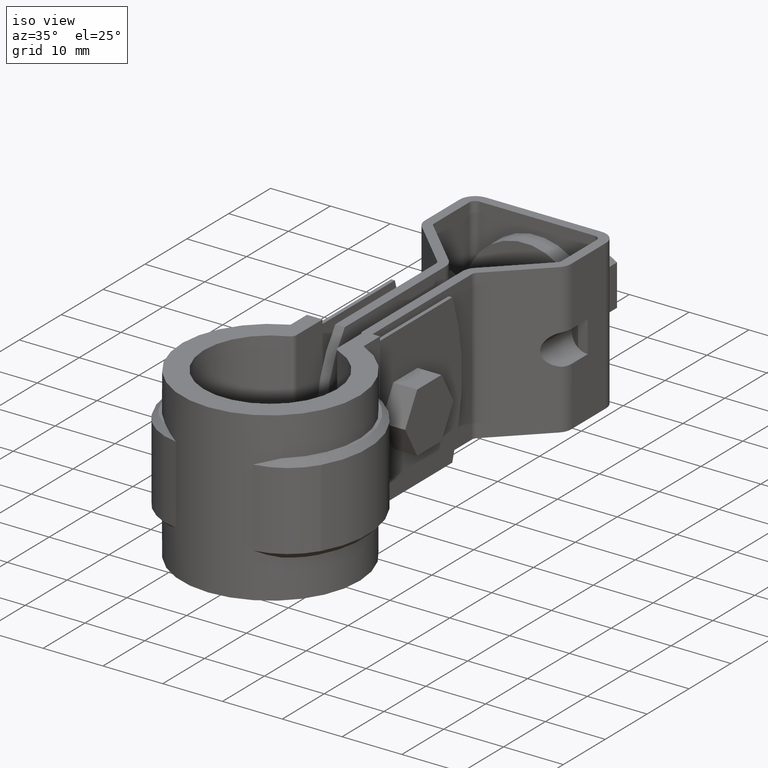
[diagram: clean part render]
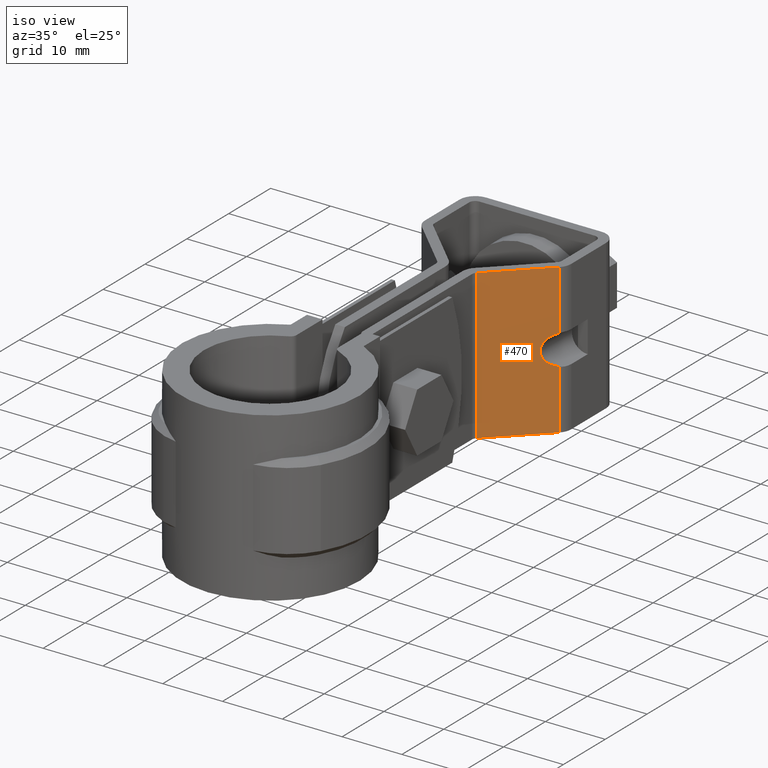
[diagram: same view with one face highlighted and labeled with its STEP entity id]
A machine part, iso view. The second image highlights one B-rep face of the part: STEP entity #470.
In plain terms, the highlighted planar face has unit normal (0.6983, -0.7158, -0).
Its self-contained STEP definition (entity closure, byte-faithful):
#470 = ADVANCED_FACE( '', ( #848 ), #849, .T. );
#848 = FACE_OUTER_BOUND( '', #1677, .T. );
#849 = PLANE( '', #1678 );
#1677 = EDGE_LOOP( '', ( #4097, #4098, #4099, #4100, #4101, #4102 ) );
#1678 = AXIS2_PLACEMENT_3D( '', #4103, #4104, #4105 );
#4097 = ORIENTED_EDGE( '', *, *, #4936, .T. );
#4098 = ORIENTED_EDGE( '', *, *, #4942, .F. );
#4099 = ORIENTED_EDGE( '', *, *, #4849, .T. );
#4100 = ORIENTED_EDGE( '', *, *, #4868, .F. );
#4101 = ORIENTED_EDGE( '', *, *, #4828, .F. );
#4102 = ORIENTED_EDGE( '', *, *, #4943, .F. );
#4103 = CARTESIAN_POINT( '', ( 3.90167616463293, 45.1533088654653, 1.12334863633379E-008 ) );
#4104 = DIRECTION( '', ( 0.698323835529888, -0.715781964519103, -6.63555655402715E-011 ) );
#4105 = DIRECTION( '', ( -0.715781964519103, -0.698323835529888, -6.58066504214425E-011 ) );
#4828 = EDGE_CURVE( '', #5643, #5645, #5646, .T. );
#4849 = EDGE_CURVE( '', #5683, #5684, #5685, .T. );
#4868 = EDGE_CURVE( '', #5645, #5684, #5716, .T. );
#4936 = EDGE_CURVE( '', #5823, #5821, #5824, .T. );
#4942 = EDGE_CURVE( '', #5683, #5821, #5831, .T. );
#4943 = EDGE_CURVE( '', #5823, #5643, #5832, .T. );
#5643 = VERTEX_POINT( '', #8098 );
#5645 = VERTEX_POINT( '', #8100 );
#5646 = LINE( '', #8101, #8102 );
#5683 = VERTEX_POINT( '', #8150 );
#5684 = VERTEX_POINT( '', #8151 );
#5685 = ELLIPSE( '', #8152, 3.70224472166266, 2.64999999999997 );
#5716 = LINE( '', #8218, #8219 );
#5821 = VERTEX_POINT( '', #8392 );
#5823 = VERTEX_POINT( '', #8394 );
#5824 = LINE( '', #8395, #8396 );
#5831 = LINE( '', #8406, #8407 );
#5832 = LINE( '', #8408, #8409 );
#8098 = CARTESIAN_POINT( '', ( 3.30167616463242, 44.5679430388762, 1.11783221568018E-008 ) );
#8100 = CARTESIAN_POINT( '', ( 11.4656419725490, 52.5327873611964, 1.19288884325996E-008 ) );
#8101 = CARTESIAN_POINT( '', ( 3.90167616463293, 45.1533088654653, 1.12334863633379E-008 ) );
#8102 = VECTOR( '', #9159, 1000.00000000000 );
#8150 = CARTESIAN_POINT( '', ( 11.4656419725605, 52.5327873626011, -15.0312610343693 ) );
#8151 = CARTESIAN_POINT( '', ( 11.4656419725566, 52.5327873621280, -9.96873894177287 ) );
#8152 = AXIS2_PLACEMENT_3D( '', #9198, #9199, #9200 );
#8218 = CARTESIAN_POINT( '', ( 11.4656419725490, 52.5327873611964, 1.19288884325996E-008 ) );
#8219 = VECTOR( '', #9225, 1000.00000000000 );
#8392 = CARTESIAN_POINT( '', ( 11.4656419725682, 52.5327873635327, -24.9999999880711 ) );
#8394 = CARTESIAN_POINT( '', ( 3.30167616465156, 44.5679430412124, -24.9999999888217 ) );
#8395 = CARTESIAN_POINT( '', ( 3.90167616465207, 45.1533088678015, -24.9999999887665 ) );
#8396 = VECTOR( '', #9331, 1000.00000000000 );
#8406 = CARTESIAN_POINT( '', ( 11.4656419725490, 52.5327873611964, 1.19288884325996E-008 ) );
#8407 = VECTOR( '', #9341, 1000.00000000000 );
#8408 = CARTESIAN_POINT( '', ( 3.30167616463242, 44.5679430388762, 1.11783082790140E-008 ) );
#8409 = VECTOR( '', #9342, 1000.00000000000 );
#9159 = DIRECTION( '', ( 0.715781964519100, 0.698323835529891, 6.58066504214428E-011 ) );
#9198 = CARTESIAN_POINT( '', ( 12.2500000001799, 53.2980146709978, -12.4999999879990 ) );
#9199 = DIRECTION( '', ( -0.698323835529886, 0.715781964519104, 6.63555304378239E-011 ) );
#9200 = DIRECTION( '', ( 0.715781964519104, 0.698323835529886, 6.58066864014530E-011 ) );
#9225 = DIRECTION( '', ( 7.65540480244708E-013, 9.34504695848679E-011, -1.00000000000000 ) );
#9331 = DIRECTION( '', ( 0.715781964519100, 0.698323835529891, 6.58066504214428E-011 ) );
#9341 = DIRECTION( '', ( 7.65540480244708E-013, 9.34504695848679E-011, -1.00000000000000 ) );
#9342 = DIRECTION( '', ( -7.65601710562399E-013, -9.34505293217604E-011, 1.00000000000000 ) );